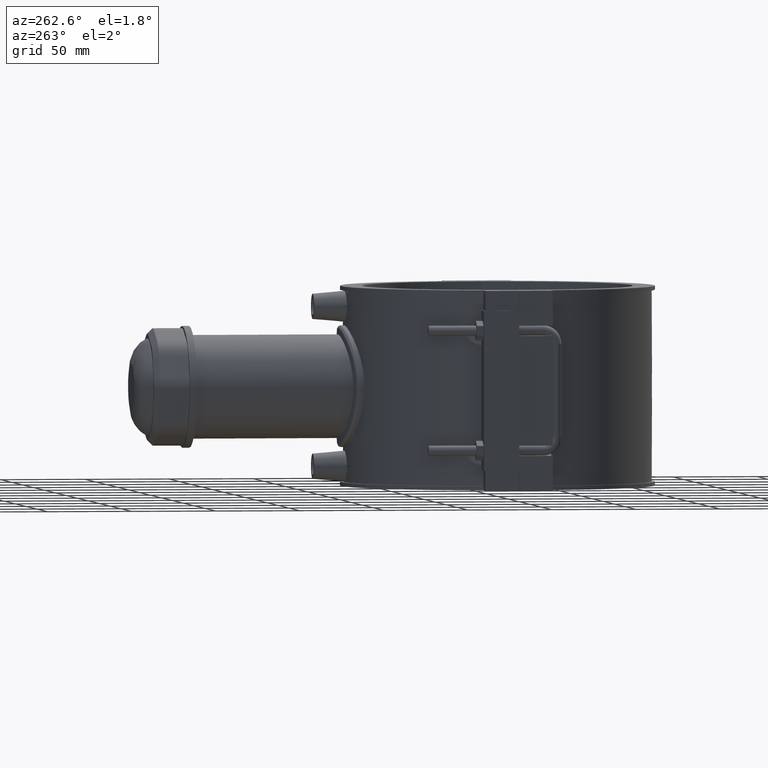
[diagram: clean part render]
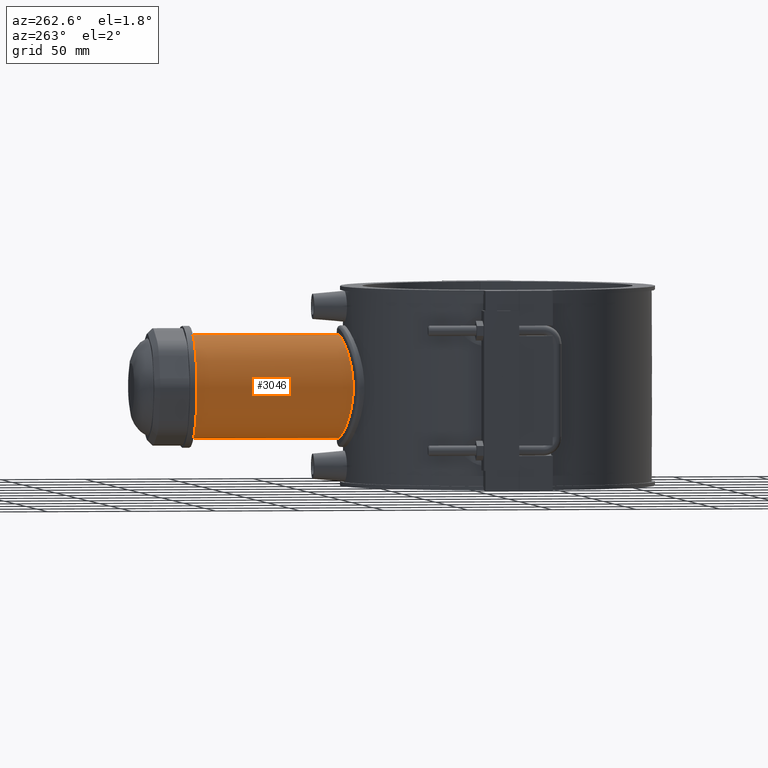
[diagram: same view with one face highlighted and labeled with its STEP entity id]
A machine part, auxiliary view. The second image highlights one B-rep face of the part: STEP entity #3046.
In plain terms, the highlighted cylindrical surface (bore or boss wall) has radius 30.6 mm, axis along (0, 1, 0).
Its self-contained STEP definition (entity closure, byte-faithful):
#738=CIRCLE('',#3259,30.6);
#819=FACE_BOUND('',#1093,.T.);
#904=FACE_OUTER_BOUND('',#1092,.T.);
#1092=EDGE_LOOP('',(#2246,#2247));
#1093=EDGE_LOOP('',(#2248));
#1285=B_SPLINE_CURVE_WITH_KNOTS('',3,(#4521,#4522,#4523,#4524,#4525,#4526,
#4527,#4528,#4529,#4530,#4531,#4532,#4533,#4534,#4535,#4536,#4537,#4538,
#4539,#4540,#4541,#4542,#4543,#4544,#4545,#4546,#4547,#4548,#4549,#4550,
#4551,#4552,#4553,#4554,#4555,#4556,#4557,#4558,#4559,#4560,#4561,#4562,
#4563,#4564,#4565,#4566,#4567),.UNSPECIFIED.,.F.,.F.,(4,2,2,2,2,2,2,2,2,
2,2,2,2,2,2,2,2,2,2,3,2,2,4),(-9.352334075759,-9.14983183191696,-8.63333325207762,
-8.11683467223829,-7.60033609239895,-7.08383751255962,-6.56733893272028,
-6.05084035288094,-5.55273459869049,-5.05462884450004,-4.55652309030959,
-4.05841733611914,-3.56031158192869,-3.06220582773825,-2.5641000735478,
-2.06599431935735,-1.54949573951801,-1.03299715967867,-0.516498579839336,
0.,0.516498579839337,1.03299715967867,1.23549940352071),.UNSPECIFIED.);
#1286=B_SPLINE_CURVE_WITH_KNOTS('',3,(#4769,#4770,#4771,#4772,#4773,#4774,
#4775,#4776,#4777,#4778,#4779,#4780,#4781,#4782,#4783,#4784,#4785,#4786,
#4787,#4788,#4789,#4790,#4791,#4792,#4793,#4794,#4795,#4796,#4797,#4798,
#4799,#4800,#4801,#4802,#4803,#4804,#4805,#4806,#4807,#4808,#4809,#4810,
#4811,#4812,#4813,#4814,#4815,#4816,#4817,#4818),.UNSPECIFIED.,.F.,.F.,
(4,2,2,2,2,2,2,2,2,2,2,2,2,2,2,2,2,2,2,2,2,2,2,2,4),(2.40316341056035,2.90459074452711,
3.4853210730496,4.0660514015721,4.64678173009459,5.22751205861709,5.80824238713958,
6.38897271566208,6.96970304418458,7.55066814818573,8.13163325218688,8.71259835618804,
9.29356346018919,9.87452856419034,10.4554936681915,11.0364587721926,11.6174238761938,
12.1981542047163,12.7788845332388,13.3596148617613,13.9403451902838,14.5210755188063,
15.1018058473288,15.6825361758513,16.183963509818),.UNSPECIFIED.);
#1336=VERTEX_POINT('',#4452);
#1342=VERTEX_POINT('',#4516);
#1394=VERTEX_POINT('',#4819);
#1636=EDGE_CURVE('',#1336,#1342,#1285,.T.);
#1721=EDGE_CURVE('',#1336,#1342,#1286,.T.);
#1722=EDGE_CURVE('',#1394,#1394,#738,.T.);
#2246=ORIENTED_EDGE('',*,*,#1721,.F.);
#2247=ORIENTED_EDGE('',*,*,#1636,.T.);
#2248=ORIENTED_EDGE('',*,*,#1722,.F.);
#2969=CYLINDRICAL_SURFACE('',#3258,30.6);
#3046=ADVANCED_FACE('',(#904,#819),#2969,.T.);
#3258=AXIS2_PLACEMENT_3D('',#4768,#3665,#3666);
#3259=AXIS2_PLACEMENT_3D('',#4820,#3667,#3668);
#3665=DIRECTION('center_axis',(0.,1.,3.06161699786838E-16));
#3666=DIRECTION('ref_axis',(0.,0.,1.));
#3667=DIRECTION('center_axis',(0.,1.,3.06161699786838E-16));
#3668=DIRECTION('ref_axis',(1.,0.,0.));
#4452=CARTESIAN_POINT('',(21.0745909503137,92.4770496951112,22.1860680670375));
#4516=CARTESIAN_POINT('',(21.0745909503137,92.4770496951112,-22.1860680670375));
#4521=CARTESIAN_POINT('Ctrl Pts',(21.0745909503549,92.4770496952916,22.1860680670375));
#4522=CARTESIAN_POINT('Ctrl Pts',(20.7658854939631,93.0416482612457,22.4793080047291));
#4523=CARTESIAN_POINT('Ctrl Pts',(20.4656664791027,93.6197414200075,22.7521765914243));
#4524=CARTESIAN_POINT('Ctrl Pts',(19.4491465104591,95.7149835615786,23.6439053932152));
#4525=CARTESIAN_POINT('Ctrl Pts',(18.8087110875496,97.2996753863047,24.1435666321451));
#4526=CARTESIAN_POINT('Ctrl Pts',(17.9043339506845,100.580656833605,24.8216488174023));
#4527=CARTESIAN_POINT('Ctrl Pts',(17.6453960000902,102.278338067202,25.));
#4528=CARTESIAN_POINT('Ctrl Pts',(17.6453960000902,105.721661932798,25.));
#4529=CARTESIAN_POINT('Ctrl Pts',(17.9043339506845,107.419343166395,24.8216488174023));
#4530=CARTESIAN_POINT('Ctrl Pts',(18.8087110875496,110.700324613695,24.1435666321451));
#4531=CARTESIAN_POINT('Ctrl Pts',(19.4491465104591,112.285016438421,23.6439053932152));
#4532=CARTESIAN_POINT('Ctrl Pts',(20.9095930159152,115.295276106832,22.3627478630509));
#4533=CARTESIAN_POINT('Ctrl Pts',(21.7290170781198,116.722518877908,21.5800214015293));
#4534=CARTESIAN_POINT('Ctrl Pts',(23.3776041358606,119.36960239019,19.7821923044427));
#4535=CARTESIAN_POINT('Ctrl Pts',(24.2066765989964,120.588993835109,18.766345224218));
#4536=CARTESIAN_POINT('Ctrl Pts',(25.7202641563971,122.727576826744,16.6277622325837));
#4537=CARTESIAN_POINT('Ctrl Pts',(26.4655478378992,123.733461294011,15.4320705950653));
#4538=CARTESIAN_POINT('Ctrl Pts',(27.8379513570982,125.539169162758,12.7915006739807));
#4539=CARTESIAN_POINT('Ctrl Pts',(28.4645948092368,126.339013666623,11.3463892520938));
#4540=CARTESIAN_POINT('Ctrl Pts',(29.5017254590385,127.64635667487,8.28383526409027));
#4541=CARTESIAN_POINT('Ctrl Pts',(29.9129488161225,128.154992300218,6.66278751453463));
#4542=CARTESIAN_POINT('Ctrl Pts',(30.4622285480436,128.831965573838,3.35110075354027));
#4543=CARTESIAN_POINT('Ctrl Pts',(30.6,129.,1.66035251396817));
#4544=CARTESIAN_POINT('Ctrl Pts',(30.6,129.,-1.66035251396816));
#4545=CARTESIAN_POINT('Ctrl Pts',(30.4622285480435,128.831965573838,-3.35110075354025));
#4546=CARTESIAN_POINT('Ctrl Pts',(29.9129488161225,128.154992300218,-6.66278751453461));
#4547=CARTESIAN_POINT('Ctrl Pts',(29.5017254590385,127.64635667487,-8.28383526409025));
#4548=CARTESIAN_POINT('Ctrl Pts',(28.4645948092368,126.339013666623,-11.3463892520937));
#4549=CARTESIAN_POINT('Ctrl Pts',(27.8379513570982,125.539169162758,-12.7915006739807));
#4550=CARTESIAN_POINT('Ctrl Pts',(26.4655478378992,123.733461294012,-15.4320705950653));
#4551=CARTESIAN_POINT('Ctrl Pts',(25.7202641563971,122.727576826744,-16.6277622325837));
#4552=CARTESIAN_POINT('Ctrl Pts',(24.2066765989964,120.588993835109,-18.766345224218));
#4553=CARTESIAN_POINT('Ctrl Pts',(23.3776041358606,119.36960239019,-19.7821923044427));
#4554=CARTESIAN_POINT('Ctrl Pts',(21.7290170781198,116.722518877908,-21.5800214015293));
#4555=CARTESIAN_POINT('Ctrl Pts',(20.9095930159152,115.295276106832,-22.3627478630509));
#4556=CARTESIAN_POINT('Ctrl Pts',(19.4491465104591,112.285016438421,-23.6439053932152));
#4557=CARTESIAN_POINT('Ctrl Pts',(18.8087110875496,110.700324613695,-24.1435666321451));
#4558=CARTESIAN_POINT('Ctrl Pts',(17.9043339506845,107.419343166395,-24.8216488174023));
#4559=CARTESIAN_POINT('Ctrl Pts',(17.6453960000902,105.721661932798,-25.));
#4560=CARTESIAN_POINT('Ctrl Pts',(17.6453960000902,104.,-25.));
#4561=CARTESIAN_POINT('Ctrl Pts',(17.6453960000902,102.278338067202,-25.));
#4562=CARTESIAN_POINT('Ctrl Pts',(17.9043339506845,100.580656833605,-24.8216488174023));
#4563=CARTESIAN_POINT('Ctrl Pts',(18.8087110875496,97.2996753863047,-24.1435666321451));
#4564=CARTESIAN_POINT('Ctrl Pts',(19.4491465104591,95.7149835615786,-23.6439053932152));
#4565=CARTESIAN_POINT('Ctrl Pts',(20.4656664791027,93.6197414200075,-22.7521765914243));
#4566=CARTESIAN_POINT('Ctrl Pts',(20.7658854939631,93.0416482612457,-22.4793080047291));
#4567=CARTESIAN_POINT('Ctrl Pts',(21.0745909503549,92.4770496952916,-22.1860680670375));
#4768=CARTESIAN_POINT('Origin',(0.,132.2,1.5981640728873E-14));
#4769=CARTESIAN_POINT('Ctrl Pts',(21.0745909503106,92.4770496949221,22.1860680670796));
#4770=CARTESIAN_POINT('Ctrl Pts',(19.8680370851232,92.7520112043152,23.3321760250765));
#4771=CARTESIAN_POINT('Ctrl Pts',(18.5336122373782,93.03107993815,24.4103714784953));
#4772=CARTESIAN_POINT('Ctrl Pts',(15.4329286813068,93.5993031168435,26.4992461006475));
#4773=CARTESIAN_POINT('Ctrl Pts',(13.631272856127,93.8825435640115,27.4719233949298));
#4774=CARTESIAN_POINT('Ctrl Pts',(9.86551095491982,94.3526114058744,29.037731979501));
#4775=CARTESIAN_POINT('Ctrl Pts',(7.89815368754498,94.5394500759913,29.6321067919959));
#4776=CARTESIAN_POINT('Ctrl Pts',(3.93330788712414,94.787222458565,30.4133469660293));
#4777=CARTESIAN_POINT('Ctrl Pts',(1.93576776174165,94.848,30.6));
#4778=CARTESIAN_POINT('Ctrl Pts',(-1.93576776174165,94.848,30.6));
#4779=CARTESIAN_POINT('Ctrl Pts',(-3.93330788712413,94.787222458565,30.4133469660293));
#4780=CARTESIAN_POINT('Ctrl Pts',(-7.89815368754497,94.5394500759913,29.6321067919959));
#4781=CARTESIAN_POINT('Ctrl Pts',(-9.86551095491981,94.3526114058744,29.037731979501));
#4782=CARTESIAN_POINT('Ctrl Pts',(-13.631272856127,93.8825435640115,27.4719233949298));
#4783=CARTESIAN_POINT('Ctrl Pts',(-15.4329286813068,93.5993031168435,26.4992461006475));
#4784=CARTESIAN_POINT('Ctrl Pts',(-18.7608374372632,92.9894392408576,24.2572939570489));
#4785=CARTESIAN_POINT('Ctrl Pts',(-20.2870813672055,92.6633751150286,22.9878536414112));
#4786=CARTESIAN_POINT('Ctrl Pts',(-22.9883995704528,92.030439524035,20.2865354381639));
#4787=CARTESIAN_POINT('Ctrl Pts',(-24.2579050577145,91.7008743091418,18.7600336117641));
#4788=CARTESIAN_POINT('Ctrl Pts',(-26.4996186659277,91.0783537268796,15.4322723274951));
#4789=CARTESIAN_POINT('Ctrl Pts',(-27.4720165204803,90.7860327461246,13.6310220407474));
#4790=CARTESIAN_POINT('Ctrl Pts',(-29.0375121241267,90.2974993277936,9.86606655262255));
#4791=CARTESIAN_POINT('Ctrl Pts',(-29.6318519109876,90.1014210770434,7.8990979169259));
#4792=CARTESIAN_POINT('Ctrl Pts',(-30.4132064646925,89.8406901161434,3.93437007268649));
#4793=CARTESIAN_POINT('Ctrl Pts',(-30.6,89.7762947776305,1.93655034667051));
#4794=CARTESIAN_POINT('Ctrl Pts',(-30.6,89.7762947776305,-1.93655034667051));
#4795=CARTESIAN_POINT('Ctrl Pts',(-30.4132064646925,89.8406901161434,-3.93437007268649));
#4796=CARTESIAN_POINT('Ctrl Pts',(-29.6318519109876,90.1014210770433,-7.8990979169259));
#4797=CARTESIAN_POINT('Ctrl Pts',(-29.0375121241267,90.2974993277936,-9.86606655262254));
#4798=CARTESIAN_POINT('Ctrl Pts',(-27.4720165204803,90.7860327461246,-13.6310220407474));
#4799=CARTESIAN_POINT('Ctrl Pts',(-26.4996186659277,91.0783537268796,-15.4322723274951));
#4800=CARTESIAN_POINT('Ctrl Pts',(-24.2579050577145,91.7008743091418,-18.7600336117641));
#4801=CARTESIAN_POINT('Ctrl Pts',(-22.9883995704528,92.030439524035,-20.2865354381639));
#4802=CARTESIAN_POINT('Ctrl Pts',(-20.2870813672055,92.6633751150286,-22.9878536414112));
#4803=CARTESIAN_POINT('Ctrl Pts',(-18.7608374372632,92.9894392408576,-24.2572939570489));
#4804=CARTESIAN_POINT('Ctrl Pts',(-15.4329286813068,93.5993031168435,-26.4992461006475));
#4805=CARTESIAN_POINT('Ctrl Pts',(-13.631272856127,93.8825435640115,-27.4719233949298));
#4806=CARTESIAN_POINT('Ctrl Pts',(-9.86551095491982,94.3526114058744,-29.037731979501));
#4807=CARTESIAN_POINT('Ctrl Pts',(-7.89815368754498,94.5394500759913,-29.6321067919958));
#4808=CARTESIAN_POINT('Ctrl Pts',(-3.93330788712414,94.787222458565,-30.4133469660292));
#4809=CARTESIAN_POINT('Ctrl Pts',(-1.93576776174165,94.848,-30.6));
#4810=CARTESIAN_POINT('Ctrl Pts',(1.93576776174165,94.848,-30.6));
#4811=CARTESIAN_POINT('Ctrl Pts',(3.93330788712413,94.787222458565,-30.4133469660292));
#4812=CARTESIAN_POINT('Ctrl Pts',(7.89815368754498,94.5394500759913,-29.6321067919958));
#4813=CARTESIAN_POINT('Ctrl Pts',(9.86551095491981,94.3526114058744,-29.037731979501));
#4814=CARTESIAN_POINT('Ctrl Pts',(13.631272856127,93.8825435640115,-27.4719233949298));
#4815=CARTESIAN_POINT('Ctrl Pts',(15.4329286813068,93.5993031168435,-26.4992461006475));
#4816=CARTESIAN_POINT('Ctrl Pts',(18.5336122373782,93.03107993815,-24.4103714784953));
#4817=CARTESIAN_POINT('Ctrl Pts',(19.8680370851232,92.7520112043152,-23.3321760250765));
#4818=CARTESIAN_POINT('Ctrl Pts',(21.0745909503106,92.4770496949221,-22.1860680670796));
#4819=CARTESIAN_POINT('',(0.,183.5,30.6000000000001));
#4820=CARTESIAN_POINT('Origin',(0.,183.5,3.16877359279378E-14));